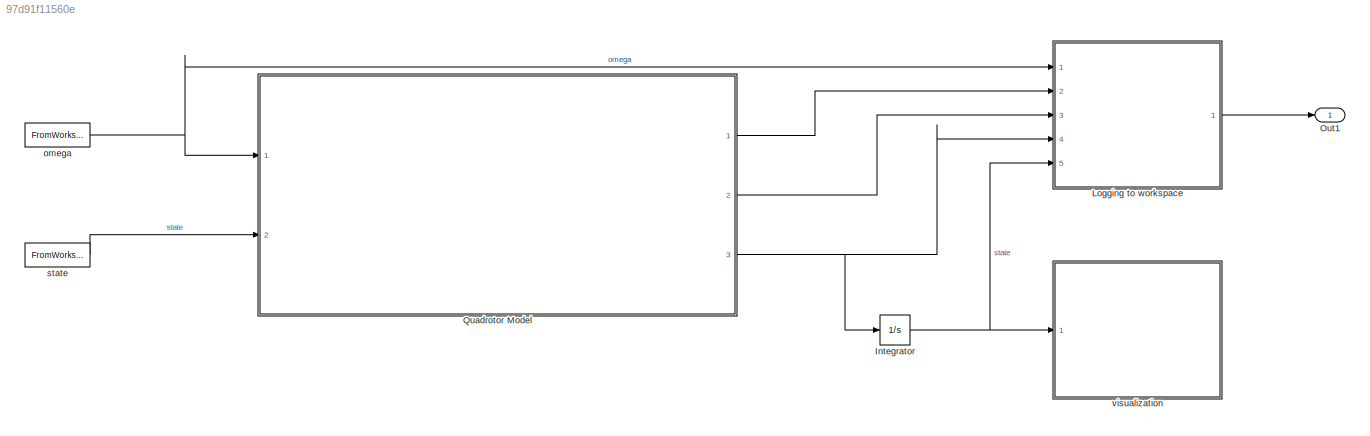
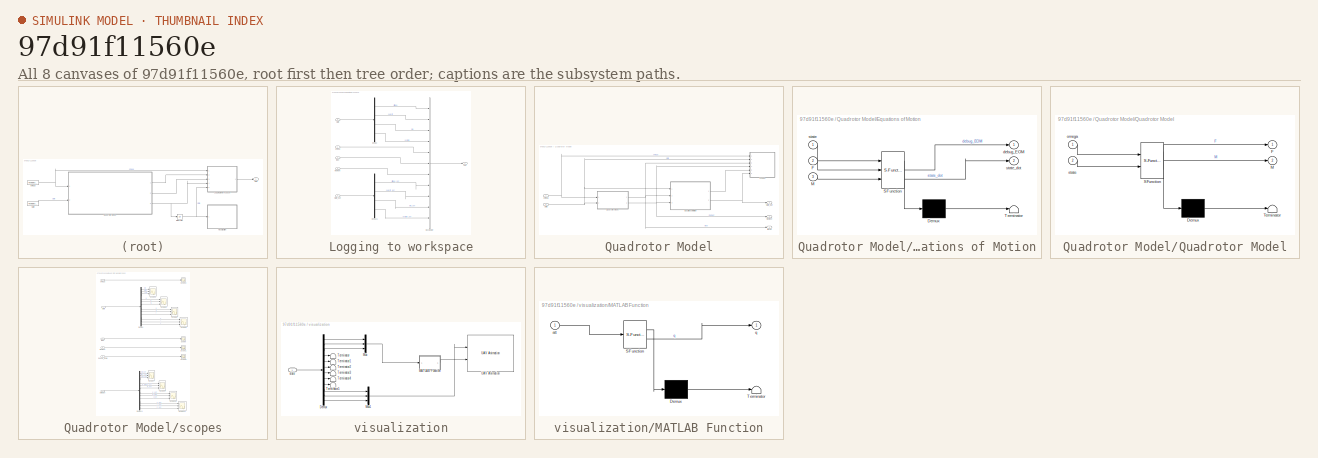
[diagram: thumbnail index - all 8 canvases of the model, root first then tree order]
MODEL slx_97d91f11560e
KIND model
CONFIG AbsTol = auto
CONFIG EnableMultiTasking = off
CONFIG FixedStep = auto
CONFIG MaxStep = auto
CONFIG MinStep = auto
CONFIG RelTol = 1e-3
CONFIG SampleTimeConstraint = Unconstrained
CONFIG SolverName = VariableStepAuto
CONFIG StartTime = 0.0
CONFIG StopTime = 10.0
BLOCK [Integrator] Integrator
  InitialCondition = state.signals.values(1, :)
  NameLocation = top
  Ports = [1, 1]
BLOCK [SubSystem] Logging to workspace
  Ports = [5, 1]
  RequestExecContextInheritance = off
BLOCK [BusCreator] Logging to workspace/Bus Creator
  DisplayOption = bar
  InheritFromInputs = on
  Inputs = 11
  Ports = [11, 1]
BLOCK [Demux] Logging to workspace/Demux
  Ports = [1, 4]
BLOCK [Demux] Logging to workspace/Demux1
  Ports = [1, 4]
BLOCK [Outport] Logging to workspace/Out1
BLOCK [Inport] Logging to workspace/force
  Port = 3
BLOCK [Inport] Logging to workspace/moment
  Port = 2
BLOCK [Inport] Logging to workspace/omega
BLOCK [Inport] Logging to workspace/state
  Port = 5
BLOCK [Inport] Logging to workspace/state_dot
  Port = 4
BLOCK [Outport] Out1
BLOCK [SubSystem] Quadrotor Model
  Ports = [2, 3]
  RequestExecContextInheritance = off
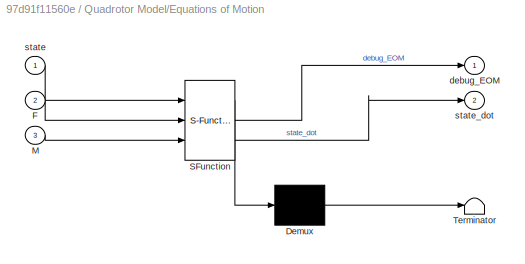
BLOCK [SubSystem] Quadrotor Model/Equations of Motion
  ErrorFcn = Stateflow.Translate.translate
  PermitHierarchicalResolution = ExplicitOnly
  Ports = [3, 2]
  RequestExecContextInheritance = off
  SFBlockType = MATLAB Function
  TreatAsAtomicUnit = on
BLOCK [Demux] Quadrotor Model/Equations of Motion/ Demux 
  Outputs = 1
  Ports = [1, 1]
BLOCK [S-Function] Quadrotor Model/Equations of Motion/ SFunction 
  EnableBusSupport = on
  FunctionName = sf_sfun
  Parameters = droneParams,modelParams
  PortCounts = [3 3]
  Ports = [3, 3]
  SFcnIsStateOwnerBlock = off
  SFunctionDeploymentMode = off
  Tag = Stateflow S-Function 1
BLOCK [Terminator] Quadrotor Model/Equations of Motion/ Terminator 
BLOCK [Inport] Quadrotor Model/Equations of Motion/F
  Port = 2
BLOCK [Inport] Quadrotor Model/Equations of Motion/M
  Port = 3
BLOCK [Outport] Quadrotor Model/Equations of Motion/debug_EOM
BLOCK [Inport] Quadrotor Model/Equations of Motion/state
BLOCK [Outport] Quadrotor Model/Equations of Motion/state_dot
  Port = 2
BLOCK [SubSystem] Quadrotor Model/Quadrotor Model
  ErrorFcn = Stateflow.Translate.translate
  PermitHierarchicalResolution = ExplicitOnly
  Ports = [2, 2]
  RequestExecContextInheritance = off
  SFBlockType = MATLAB Function
  TreatAsAtomicUnit = on
BLOCK [Demux] Quadrotor Model/Quadrotor Model/ Demux 
  Outputs = 1
  Ports = [1, 1]
BLOCK [S-Function] Quadrotor Model/Quadrotor Model/ SFunction 
  EnableBusSupport = on
  FunctionName = sf_sfun
  Parameters = droneParams,modelParams
  PortCounts = [2 3]
  Ports = [2, 3]
  SFcnIsStateOwnerBlock = off
  SFunctionDeploymentMode = off
  Tag = Stateflow S-Function 2
BLOCK [Terminator] Quadrotor Model/Quadrotor Model/ Terminator 
BLOCK [Outport] Quadrotor Model/Quadrotor Model/F
BLOCK [Outport] Quadrotor Model/Quadrotor Model/M
  Port = 2
BLOCK [Inport] Quadrotor Model/Quadrotor Model/omega
BLOCK [Inport] Quadrotor Model/Quadrotor Model/state
  Port = 2
BLOCK [Outport] Quadrotor Model/force
  PortDimensions = 3
BLOCK [Outport] Quadrotor Model/moment
  Port = 2
  PortDimensions = 3
BLOCK [Inport] Quadrotor Model/omega
  OutMax = droneParams.maxRPM
  OutMin = droneParams.minRPM
  PortDimensions = 4
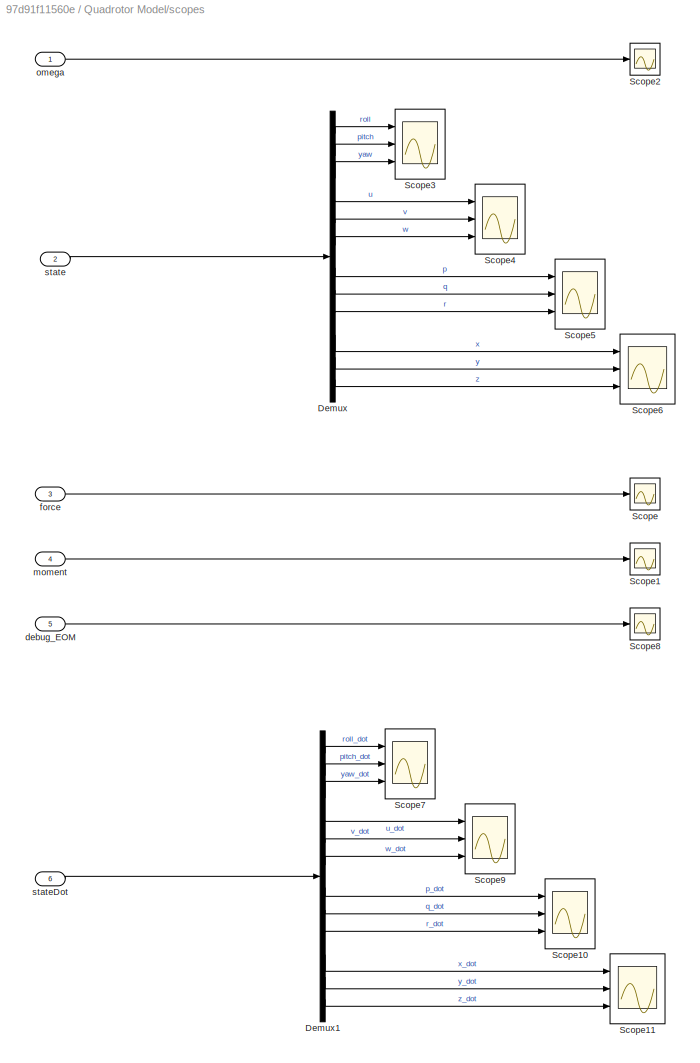
BLOCK [SubSystem] Quadrotor Model/scopes
  Ports = [6]
  RequestExecContextInheritance = off
BLOCK [Demux] Quadrotor Model/scopes/Demux
  Outputs = 12
  Ports = [1, 12]
BLOCK [Demux] Quadrotor Model/scopes/Demux1
  Outputs = 12
  Ports = [1, 12]
BLOCK [Scope] Quadrotor Model/scopes/Scope
  Floating = off
  NumInputPorts = 1
  Ports = [1]
  ScopeSpecificationString = Simulink.scopes.TimeScopeBlockCfg('CurrentConfiguration', extmgr.ConfigurationSet(extmgr.Configuration('Core','General UI',true),extmgr.Configuration('Core','Source UI',true),extmgr.Configuration('Sources','WiredSimulink',true,'DataLoggingVariableName','ScopeData4'),extmgr.Configuration('Visuals','Time Domain',true,'SerializedDisplays',{struct('MinYLimReal','-10.71926','MaxYLimReal','2.2605','YLab...<+1388ch>
BLOCK [Scope] Quadrotor Model/scopes/Scope1
  Floating = off
  NumInputPorts = 1
  Ports = [1]
  ScopeSpecificationString = Simulink.scopes.TimeScopeBlockCfg('CurrentConfiguration', extmgr.ConfigurationSet(extmgr.Configuration('Core','General UI',true),extmgr.Configuration('Core','Source UI',true),extmgr.Configuration('Sources','WiredSimulink',true,'DataLoggingVariableName','ScopeData5'),extmgr.Configuration('Visuals','Time Domain',true,'SerializedDisplays',{struct('MinYLimReal','-9559.70215','MaxYLimReal','3356.92298'...<+1411ch>
BLOCK [Scope] Quadrotor Model/scopes/Scope10
  Floating = off
  NumInputPorts = 3
  Ports = [3]
  ScopeSpecificationString = Simulink.scopes.TimeScopeBlockCfg('CurrentConfiguration', extmgr.ConfigurationSet(extmgr.Configuration('Core','General UI',true),extmgr.Configuration('Core','Source UI',true),extmgr.Configuration('Sources','WiredSimulink',true,'DataLoggingVariableName','ScopeData6'),extmgr.Configuration('Visuals','Time Domain',true,'SerializedDisplays',{struct('MinYLimReal','-0.000007','MaxYLimReal','0.000005','YL...<+1367ch>
BLOCK [Scope] Quadrotor Model/scopes/Scope11
  Floating = off
  NumInputPorts = 3
  Ports = [3]
  ScopeSpecificationString = Simulink.scopes.TimeScopeBlockCfg('CurrentConfiguration', extmgr.ConfigurationSet(extmgr.Configuration('Core','General UI',true),extmgr.Configuration('Core','Source UI',true),extmgr.Configuration('Sources','WiredSimulink',true,'DataLoggingVariableName','ScopeData7'),extmgr.Configuration('Visuals','Time Domain',true,'SerializedDisplays',{struct('MinYLimReal','-0.23005','MaxYLimReal','0.01958','YLab...<+1389ch>
BLOCK [Scope] Quadrotor Model/scopes/Scope2
  Floating = off
  NumInputPorts = 1
  Ports = [1]
  ScopeSpecificationString = Simulink.scopes.TimeScopeBlockCfg('CurrentConfiguration', extmgr.ConfigurationSet(extmgr.Configuration('Core','General UI',true),extmgr.Configuration('Core','Source UI',true),extmgr.Configuration('Sources','WiredSimulink',true,'DataLoggingVariableName','ScopeData4'),extmgr.Configuration('Visuals','Time Domain',true,'SerializedDisplays',{struct('MinYLimReal','752.25484','MaxYLimReal','1808.22081','...<+1576ch>
BLOCK [Scope] Quadrotor Model/scopes/Scope3
  Floating = off
  NumInputPorts = 3
  Ports = [3]
  ScopeSpecificationString = Simulink.scopes.TimeScopeBlockCfg('CurrentConfiguration', extmgr.ConfigurationSet(extmgr.Configuration('Core','General UI',true),extmgr.Configuration('Core','Source UI',true),extmgr.Configuration('Sources','WiredSimulink',true,'DataLoggingVariableName','ScopeData5'),extmgr.Configuration('Visuals','Time Domain',true,'SerializedDisplays',{struct('MinYLimReal','-2630956.01695','MaxYLimReal','292329.1...<+1421ch>
BLOCK [Scope] Quadrotor Model/scopes/Scope4
  Floating = off
  NumInputPorts = 3
  Ports = [3]
  ScopeSpecificationString = Simulink.scopes.TimeScopeBlockCfg('CurrentConfiguration', extmgr.ConfigurationSet(extmgr.Configuration('Core','General UI',true),extmgr.Configuration('Core','Source UI',true),extmgr.Configuration('Sources','WiredSimulink',true,'DataLoggingVariableName','ScopeData1'),extmgr.Configuration('Visuals','Time Domain',true,'SerializedDisplays',{struct('MinYLimReal','-10.63763','MaxYLimReal','10.63249','YL...<+1374ch>
BLOCK [Scope] Quadrotor Model/scopes/Scope5
  Floating = off
  NumInputPorts = 3
  Ports = [3]
  ScopeSpecificationString = Simulink.scopes.TimeScopeBlockCfg('CurrentConfiguration', extmgr.ConfigurationSet(extmgr.Configuration('Core','General UI',true),extmgr.Configuration('Core','Source UI',true),extmgr.Configuration('Sources','WiredSimulink',true,'DataLoggingVariableName','ScopeData2'),extmgr.Configuration('Visuals','Time Domain',true,'SerializedDisplays',{struct('MinYLimReal','-6071300.09563','MaxYLimReal','674590.0...<+1412ch>
BLOCK [Scope] Quadrotor Model/scopes/Scope6
  Floating = off
  NumInputPorts = 3
  Ports = [3]
  ScopeSpecificationString = Simulink.scopes.TimeScopeBlockCfg('CurrentConfiguration', extmgr.ConfigurationSet(extmgr.Configuration('Core','General UI',true),extmgr.Configuration('Core','Source UI',true),extmgr.Configuration('Sources','WiredSimulink',true,'DataLoggingVariableName','ScopeData3'),extmgr.Configuration('Visuals','Time Domain',true,'SerializedDisplays',{struct('MinYLimReal','-34.048','MaxYLimReal','27.72407','YLab...<+1366ch>
BLOCK [Scope] Quadrotor Model/scopes/Scope7
  Floating = off
  NumInputPorts = 3
  Ports = [3]
  ScopeSpecificationString = Simulink.scopes.TimeScopeBlockCfg('CurrentConfiguration', extmgr.ConfigurationSet(extmgr.Configuration('Core','General UI',true),extmgr.Configuration('Core','Source UI',true),extmgr.Configuration('Sources','WiredSimulink',true,'DataLoggingVariableName','ScopeData8'),extmgr.Configuration('Visuals','Time Domain',true,'SerializedDisplays',{struct('MinYLimReal','-4.85127','MaxYLimReal','5.62928','YLab...<+1389ch>
BLOCK [Scope] Quadrotor Model/scopes/Scope8
  Floating = off
  NumInputPorts = 1
  Ports = [1]
  ScopeSpecificationString = Simulink.scopes.TimeScopeBlockCfg('CurrentConfiguration', extmgr.ConfigurationSet(extmgr.Configuration('Core','General UI',true),extmgr.Configuration('Core','Source UI',true),extmgr.Configuration('Sources','WiredSimulink',true,'DataLoggingVariableName','ScopeData5'),extmgr.Configuration('Visuals','Time Domain',true,'SerializedDisplays',{struct('MinYLimReal','-1.11365','MaxYLimReal','0.24915','YLab...<+1387ch>
BLOCK [Scope] Quadrotor Model/scopes/Scope9
  Floating = off
  NumInputPorts = 3
  Ports = [3]
  ScopeSpecificationString = Simulink.scopes.TimeScopeBlockCfg('CurrentConfiguration', extmgr.ConfigurationSet(extmgr.Configuration('Core','General UI',true),extmgr.Configuration('Core','Source UI',true),extmgr.Configuration('Sources','WiredSimulink',true,'DataLoggingVariableName','ScopeData9'),extmgr.Configuration('Visuals','Time Domain',true,'SerializedDisplays',{struct('MinYLimReal','-14.87067','MaxYLimReal','14.35436','YL...<+1386ch>
BLOCK [Inport] Quadrotor Model/scopes/debug_EOM
  Port = 5
BLOCK [Inport] Quadrotor Model/scopes/force
  Port = 3
BLOCK [Inport] Quadrotor Model/scopes/moment
  Port = 4
BLOCK [Inport] Quadrotor Model/scopes/omega
BLOCK [Inport] Quadrotor Model/scopes/state
  Port = 2
BLOCK [Inport] Quadrotor Model/scopes/stateDot
  Port = 6
BLOCK [Inport] Quadrotor Model/state
  Port = 2
  PortDimensions = 12
BLOCK [Outport] Quadrotor Model/state_dot
  Port = 3
  PortDimensions = 12
BLOCK [FromWorkspace] omega
  SampleTime = dt
  VariableName = omega
BLOCK [FromWorkspace] state
  VariableName = state
BLOCK [SubSystem] visualization
  Commented = on
  Ports = [1]
  RequestExecContextInheritance = off
BLOCK [Demux] visualization/Demux
  Outputs = 12
  Ports = [1, 12]
BLOCK [SubSystem] visualization/MATLAB Function
  ErrorFcn = Stateflow.Translate.translate
  PermitHierarchicalResolution = ExplicitOnly
  Ports = [1, 1]
  RequestExecContextInheritance = off
  SFBlockType = MATLAB Function
  TreatAsAtomicUnit = on
BLOCK [Demux] visualization/MATLAB Function/ Demux 
  Outputs = 1
  Ports = [1, 1]
BLOCK [S-Function] visualization/MATLAB Function/ SFunction 
  EnableBusSupport = on
  FunctionName = sf_sfun
  PortCounts = [1 2]
  Ports = [1, 2]
  SFcnIsStateOwnerBlock = off
  SFunctionDeploymentMode = off
  Tag = Stateflow S-Function 9
BLOCK [Terminator] visualization/MATLAB Function/ Terminator 
BLOCK [Inport] visualization/MATLAB Function/att
BLOCK [Outport] visualization/MATLAB Function/q
BLOCK [Mux] visualization/Mux
  DisplayOption = bar
  Inputs = 3
  Ports = [3, 1]
BLOCK [Mux] visualization/Mux1
  DisplayOption = bar
  Inputs = 3
  Ports = [3, 1]
BLOCK [Terminator] visualization/Terminator
BLOCK [Terminator] visualization/Terminator1
BLOCK [Terminator] visualization/Terminator2
BLOCK [Terminator] visualization/Terminator3
BLOCK [Terminator] visualization/Terminator4
BLOCK [Terminator] visualization/Terminator5
BLOCK [Reference] visualization/UAV Animation  REF=uavutilslib/UAV Animation
  Ports = [2]
  SourceBlock = uavutilslib/UAV Animation
  SourceProductBaseCode = UV
  SourceType = uav.sluav.internal.system.UAVAnimation
BLOCK [Inport] visualization/state
NET Integrator:1 -> Logging to workspace:5, visualization:1
LINE Logging to workspace/Bus Creator:1 -> Logging to workspace/Out1:1
LINE Logging to workspace/Demux1:1 -> Logging to workspace/Bus Creator:8
LINE Logging to workspace/Demux1:2 -> Logging to workspace/Bus Creator:9
LINE Logging to workspace/Demux1:3 -> Logging to workspace/Bus Creator:10
LINE Logging to workspace/Demux1:4 -> Logging to workspace/Bus Creator:11
LINE Logging to workspace/Demux:1 -> Logging to workspace/Bus Creator:1
LINE Logging to workspace/Demux:2 -> Logging to workspace/Bus Creator:2
LINE Logging to workspace/Demux:3 -> Logging to workspace/Bus Creator:3
LINE Logging to workspace/Demux:4 -> Logging to workspace/Bus Creator:4
LINE Logging to workspace/force:1 -> Logging to workspace/Bus Creator:6
LINE Logging to workspace/moment:1 -> Logging to workspace/Bus Creator:7
LINE Logging to workspace/omega:1 -> Logging to workspace/Bus Creator:5
LINE Logging to workspace/state:1 -> Logging to workspace/Demux:1
LINE Logging to workspace/state_dot:1 -> Logging to workspace/Demux1:1
LINE Logging to workspace:1 -> Out1:1
LINE Quadrotor Model/Equations of Motion:1 -> Quadrotor Model/scopes:5
NET Quadrotor Model/Equations of Motion:2 -> Quadrotor Model/scopes:6, Quadrotor Model/state_dot:1
NET Quadrotor Model/Quadrotor Model:1 -> Quadrotor Model/Equations of Motion:2, Quadrotor Model/force:1, Quadrotor Model/scopes:3
NET Quadrotor Model/Quadrotor Model:2 -> Quadrotor Model/Equations of Motion:3, Quadrotor Model/moment:1, Quadrotor Model/scopes:4
NET Quadrotor Model/omega:1 -> Quadrotor Model/Quadrotor Model:1, Quadrotor Model/scopes:1
LINE Quadrotor Model/scopes/Demux1:1 -> Quadrotor Model/scopes/Scope7:1
LINE Quadrotor Model/scopes/Demux1:10 -> Quadrotor Model/scopes/Scope11:1
LINE Quadrotor Model/scopes/Demux1:11 -> Quadrotor Model/scopes/Scope11:2
LINE Quadrotor Model/scopes/Demux1:12 -> Quadrotor Model/scopes/Scope11:3
LINE Quadrotor Model/scopes/Demux1:2 -> Quadrotor Model/scopes/Scope7:2
LINE Quadrotor Model/scopes/Demux1:3 -> Quadrotor Model/scopes/Scope7:3
LINE Quadrotor Model/scopes/Demux1:4 -> Quadrotor Model/scopes/Scope9:1
LINE Quadrotor Model/scopes/Demux1:5 -> Quadrotor Model/scopes/Scope9:2
LINE Quadrotor Model/scopes/Demux1:6 -> Quadrotor Model/scopes/Scope9:3
LINE Quadrotor Model/scopes/Demux1:7 -> Quadrotor Model/scopes/Scope10:1
LINE Quadrotor Model/scopes/Demux1:8 -> Quadrotor Model/scopes/Scope10:2
LINE Quadrotor Model/scopes/Demux1:9 -> Quadrotor Model/scopes/Scope10:3
LINE Quadrotor Model/scopes/Demux:1 -> Quadrotor Model/scopes/Scope3:1
LINE Quadrotor Model/scopes/Demux:10 -> Quadrotor Model/scopes/Scope6:1
LINE Quadrotor Model/scopes/Demux:11 -> Quadrotor Model/scopes/Scope6:2
LINE Quadrotor Model/scopes/Demux:12 -> Quadrotor Model/scopes/Scope6:3
LINE Quadrotor Model/scopes/Demux:2 -> Quadrotor Model/scopes/Scope3:2
LINE Quadrotor Model/scopes/Demux:3 -> Quadrotor Model/scopes/Scope3:3
LINE Quadrotor Model/scopes/Demux:4 -> Quadrotor Model/scopes/Scope4:1
LINE Quadrotor Model/scopes/Demux:5 -> Quadrotor Model/scopes/Scope4:2
LINE Quadrotor Model/scopes/Demux:6 -> Quadrotor Model/scopes/Scope4:3
LINE Quadrotor Model/scopes/Demux:7 -> Quadrotor Model/scopes/Scope5:1
LINE Quadrotor Model/scopes/Demux:8 -> Quadrotor Model/scopes/Scope5:2
LINE Quadrotor Model/scopes/Demux:9 -> Quadrotor Model/scopes/Scope5:3
LINE Quadrotor Model/scopes/debug_EOM:1 -> Quadrotor Model/scopes/Scope8:1
LINE Quadrotor Model/scopes/force:1 -> Quadrotor Model/scopes/Scope:1
LINE Quadrotor Model/scopes/moment:1 -> Quadrotor Model/scopes/Scope1:1
LINE Quadrotor Model/scopes/omega:1 -> Quadrotor Model/scopes/Scope2:1
LINE Quadrotor Model/scopes/state:1 -> Quadrotor Model/scopes/Demux:1
LINE Quadrotor Model/scopes/stateDot:1 -> Quadrotor Model/scopes/Demux1:1
NET Quadrotor Model/state:1 -> Quadrotor Model/Equations of Motion:1, Quadrotor Model/Quadrotor Model:2, Quadrotor Model/scopes:2
LINE Quadrotor Model:1 -> Logging to workspace:2
LINE Quadrotor Model:2 -> Logging to workspace:3
NET Quadrotor Model:3 -> Integrator:1, Logging to workspace:4
NET omega:1 -> Logging to workspace:1, Quadrotor Model:1
LINE state:1 -> Quadrotor Model:2
LINE visualization/Demux:1 -> visualization/Mux:1
LINE visualization/Demux:10 -> visualization/Mux1:1
LINE visualization/Demux:11 -> visualization/Mux1:2
LINE visualization/Demux:12 -> visualization/Mux1:3
LINE visualization/Demux:2 -> visualization/Mux:2
LINE visualization/Demux:3 -> visualization/Mux:3
LINE visualization/Demux:4 -> visualization/Terminator:1
LINE visualization/Demux:5 -> visualization/Terminator1:1
LINE visualization/Demux:6 -> visualization/Terminator2:1
LINE visualization/Demux:7 -> visualization/Terminator3:1
LINE visualization/Demux:8 -> visualization/Terminator4:1
LINE visualization/Demux:9 -> visualization/Terminator5:1
LINE visualization/MATLAB Function:1 -> visualization/UAV Animation:2
LINE visualization/Mux1:1 -> visualization/UAV Animation:1
LINE visualization/Mux:1 -> visualization/MATLAB Function:1
LINE visualization/state:1 -> visualization/Demux:1
note: NET lines group one-source signal fan-out (src -> all destinations, sorted); 1:1 wires keep LINE
CHART Quadrotor Model/Equations of Motion states=1 transitions=1
  STATE_LABEL 'eML_blk_kernel()'
  STATE_LABEL 'SCRIPT:\n% function state_dot = EOM(state, F, M, droneParams, modelParams)\nfunction [debug_EOM, state_dot] = EOM(state, F, M, droneParams, modelParams)\n    % Function to compute the quadrotor equations of motion\n    % state = [roll, pitch, yaw, u, v, w, p, q, r, x, y, z]\n    %   - Attitude: [roll, pitch, yaw] in rad\n    %   - (Body) velocity: [u, v, w] in m/s\n    %   - (Body) rotational rates: [p, ...<+745ch>'
CHART Quadrotor Model/Quadrotor Model states=1 transitions=1
  STATE_LABEL 'eML_blk_kernel()'
  STATE_LABEL 'SCRIPT:\nfunction [F, M] = getForcesMoments(omega, state, droneParams, modelParams)\n    % Call function getFM() from workspace\n    [F, M] = getFM(state, omega, modelParams, droneParams);\n'
CHART visualization/MATLAB Function states=1 transitions=1
  STATE_LABEL 'eML_blk_kernel()'
  STATE_LABEL 'SCRIPT:\nfunction q = E2Q(att)\n\nq = Eul2Quat(att);\n'
CHART  states=0 transitions=0
CHART  states=0 transitions=0
CHART  states=0 transitions=0
